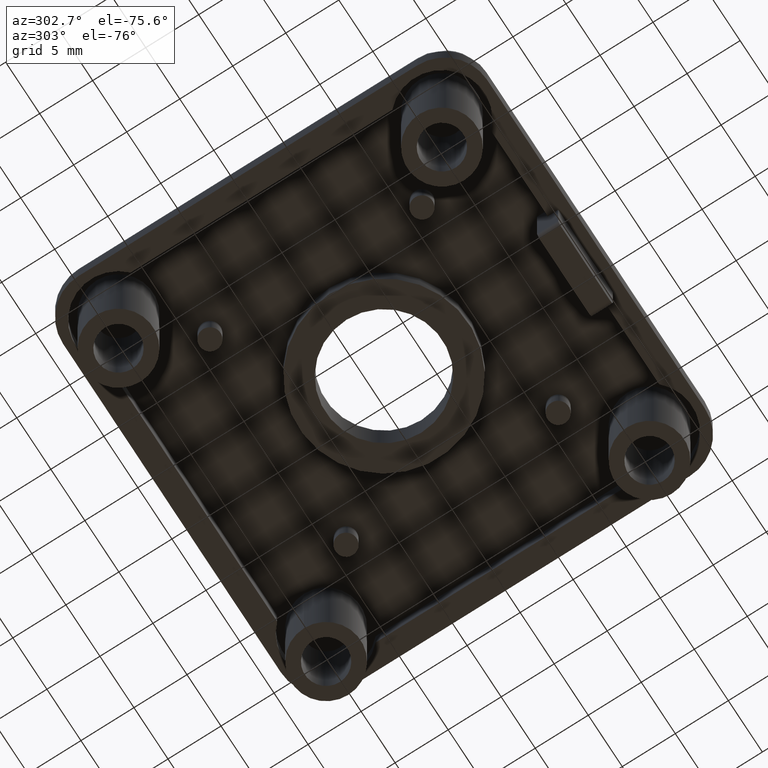
[diagram: clean part render]
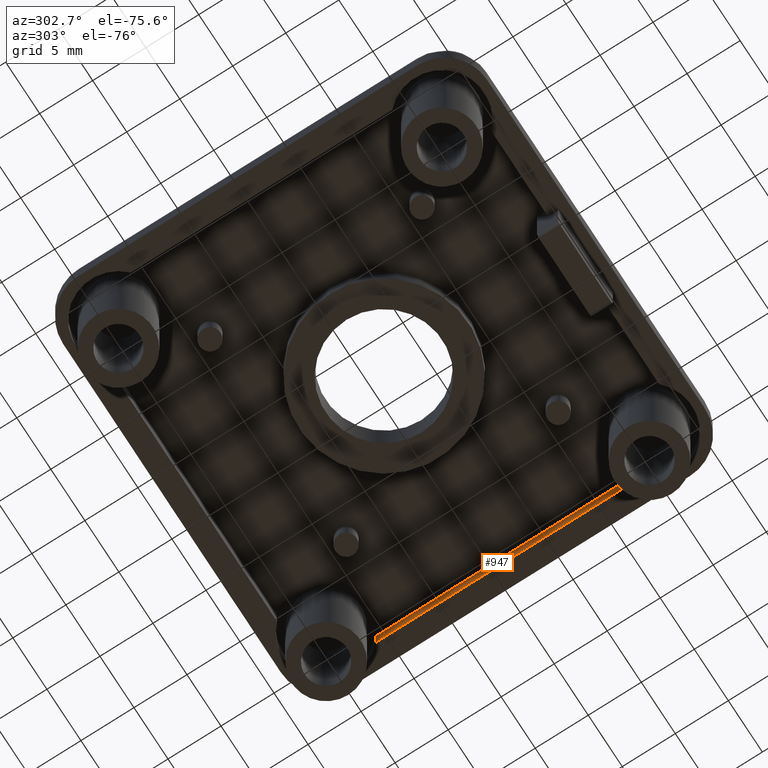
[diagram: same view with one face highlighted and labeled with its STEP entity id]
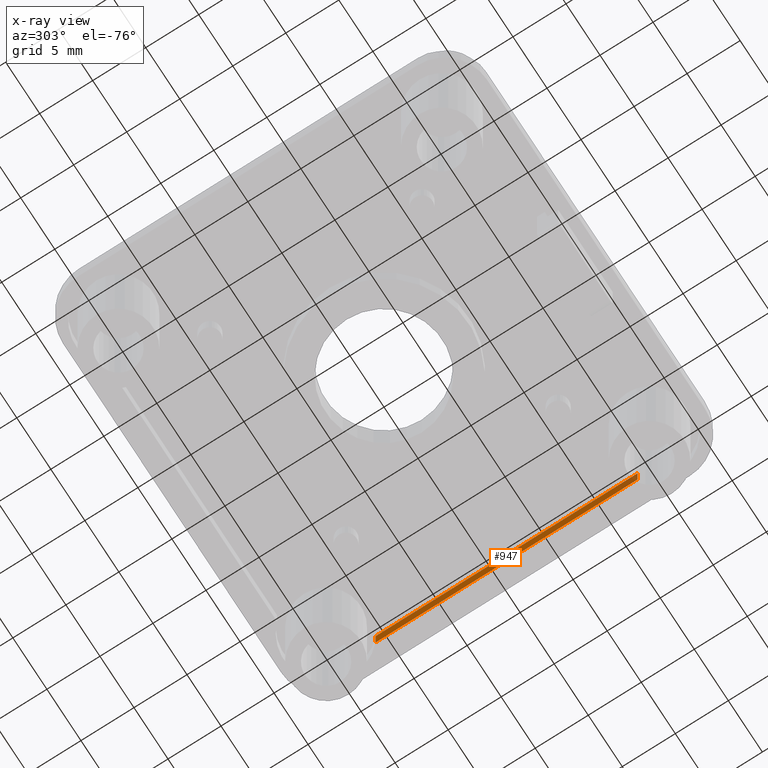
[diagram: x-ray of the same camera — body ghosted, the highlighted face saturated]
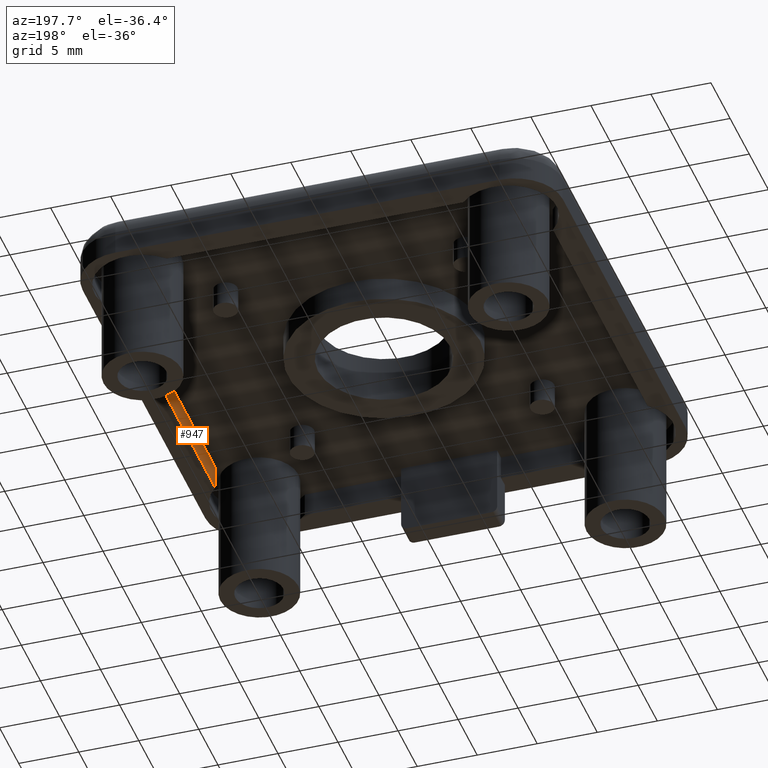
[diagram: same view with one face highlighted and labeled with its STEP entity id]
A machine part, auxiliary view. The second image highlights one B-rep face of the part: STEP entity #947.
The next image is the same camera in x-ray: the body ghosted, the highlighted face saturated — about 7% of this face is hidden behind the body in this view.
A second angle (auxiliary view) of the same face is appended — the face is thin or edge-on in the first view.
In plain terms, the highlighted planar face has unit normal (1, 0, 0).
Its self-contained STEP definition (entity closure, byte-faithful):
#57=PLANE('',#1073);
#105=FACE_OUTER_BOUND('',#182,.T.);
#182=EDGE_LOOP('',(#786,#787,#788,#789));
#228=LINE('',#1483,#298);
#245=LINE('',#1567,#315);
#254=LINE('',#1617,#324);
#255=LINE('',#1619,#325);
#298=VECTOR('',#1166,24.6905249806889);
#315=VECTOR('',#1259,24.6905249806889);
#324=VECTOR('',#1326,2.);
#325=VECTOR('',#1329,2.);
#430=VERTEX_POINT('',#1480);
#431=VERTEX_POINT('',#1482);
#459=VERTEX_POINT('',#1564);
#460=VERTEX_POINT('',#1566);
#521=EDGE_CURVE('',#430,#431,#228,.T.);
#560=EDGE_CURVE('',#460,#459,#245,.T.);
#582=EDGE_CURVE('',#430,#460,#254,.T.);
#583=EDGE_CURVE('',#459,#431,#255,.T.);
#786=ORIENTED_EDGE('',*,*,#582,.T.);
#787=ORIENTED_EDGE('',*,*,#560,.T.);
#788=ORIENTED_EDGE('',*,*,#583,.T.);
#789=ORIENTED_EDGE('',*,*,#521,.F.);
#947=ADVANCED_FACE('',(#105),#57,.F.);
#1073=AXIS2_PLACEMENT_3D('',#1618,#1327,#1328);
#1166=DIRECTION('',(-6.93889390388198E-17,1.,0.));
#1259=DIRECTION('',(-6.93889390388198E-17,1.,0.));
#1326=DIRECTION('',(0.,0.,1.));
#1327=DIRECTION('center_axis',(1.,6.93889390388198E-17,0.));
#1328=DIRECTION('ref_axis',(-6.93889390388198E-17,1.,0.));
#1329=DIRECTION('',(0.,0.,-1.));
#1480=CARTESIAN_POINT('',(18.,-12.3452624903444,0.));
#1482=CARTESIAN_POINT('',(18.,12.3452624903444,0.));
#1483=CARTESIAN_POINT('',(18.,-8.0000000000291,0.));
#1564=CARTESIAN_POINT('',(18.,12.3452624903444,2.));
#1566=CARTESIAN_POINT('',(18.,-12.3452624903444,2.));
#1567=CARTESIAN_POINT('',(18.,-16.0000000000582,2.));
#1617=CARTESIAN_POINT('',(18.,-12.3452624903444,2.));
#1618=CARTESIAN_POINT('Origin',(18.,-16.0000000000582,0.));
#1619=CARTESIAN_POINT('',(18.,12.3452624903444,2.));